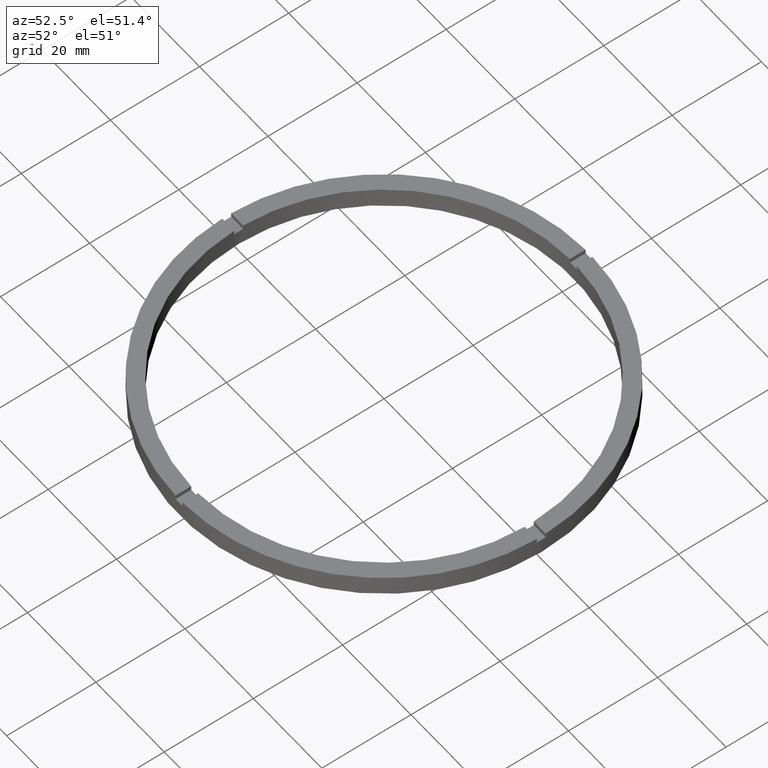
[diagram: clean part render]
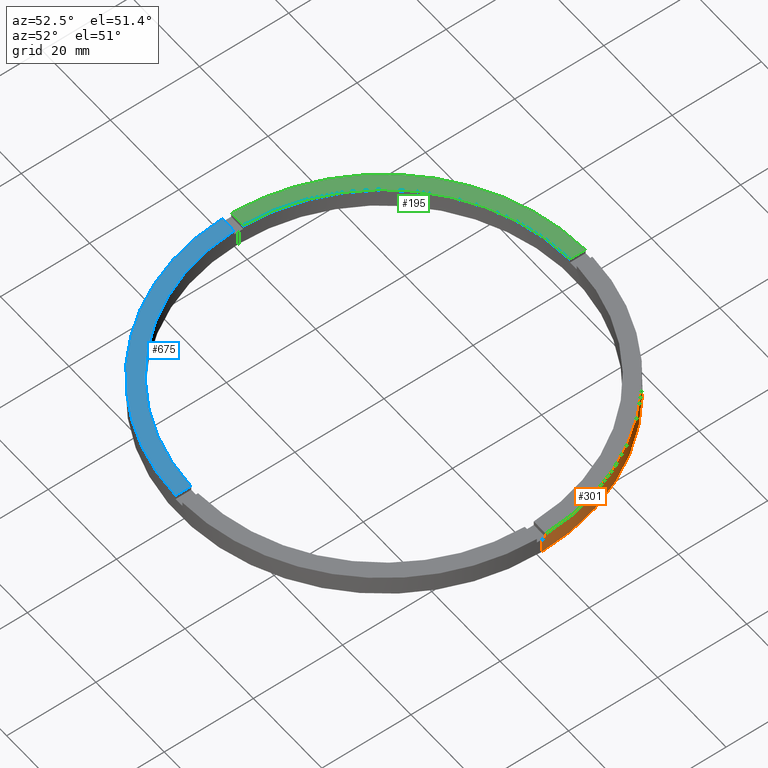
[diagram: same view with three faces highlighted in distinct colors, each labeled with its STEP entity id]
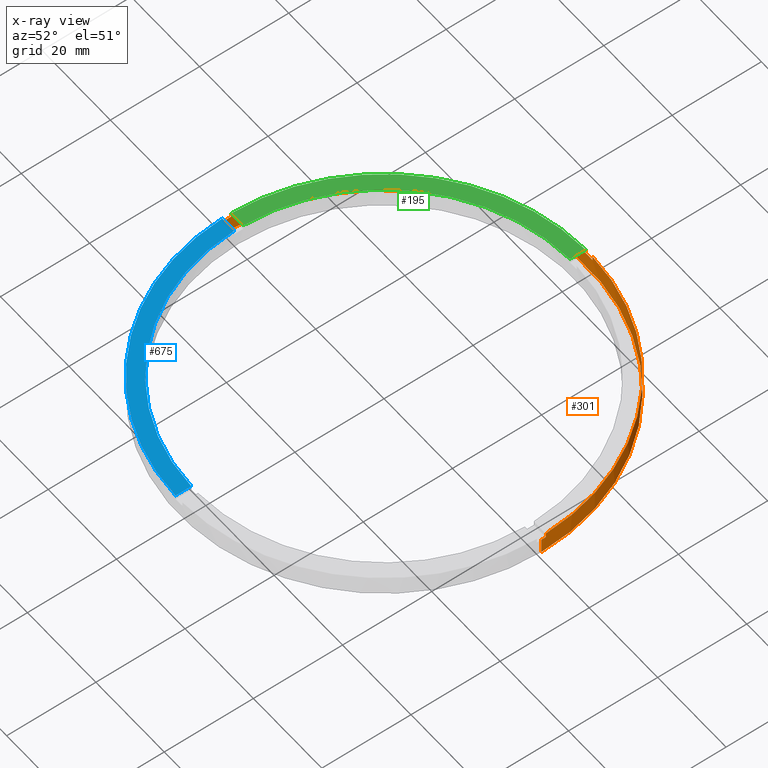
[diagram: x-ray of the same camera — body ghosted, the three highlighted faces saturated]
A machine part, auxiliary view with three faces highlighted in distinct colors.
The next image is the same camera in x-ray (body ghosted, the three faces saturated) — at least one of them is partly hidden behind the body in this view.
Their STEP definitions:

[orange] entity #301 — the highlighted cylindrical surface (partial cylindrical patch) has radius 46 mm, axis along (-0, -0, -1).
#3 = LINE ( 'NONE', #771, #769 ) ;
#13 = CARTESIAN_POINT ( 'NONE',  ( 0.000000000000000000, 0.000000000000000000, 0.000000000000000000 ) ) ;
#15 = EDGE_LOOP ( 'NONE', ( #481, #432, #734, #174, #170, #514, #721, #530, #206, #214, #464, #547 ) ) ;
#18 = CARTESIAN_POINT ( 'NONE',  ( 0.000000000000000000, 0.000000000000000000, 4.500000000000000000 ) ) ;
#22 = EDGE_CURVE ( 'NONE', #302, #444, #480, .T. ) ;
#42 = EDGE_CURVE ( 'NONE', #695, #687, #691, .T. ) ;
#57 = CARTESIAN_POINT ( 'NONE',  ( 45.98912915026767934, 0.9999999999998441247, 3.499999999999999556 ) ) ;
#69 = CARTESIAN_POINT ( 'NONE',  ( 46.00000000000000000, 5.633375276077824704E-15, 0.000000000000000000 ) ) ;
#72 = EDGE_CURVE ( 'NONE', #764, #687, #484, .T. ) ;
#75 = DIRECTION ( 'NONE',  ( 0.000000000000000000, 0.000000000000000000, 1.000000000000000000 ) ) ;
#81 = CARTESIAN_POINT ( 'NONE',  ( 46.00000000000000000, 5.633375276077824704E-15, 3.499999999999999556 ) ) ;
#84 = EDGE_CURVE ( 'NONE', #213, #563, #741, .T. ) ;
#97 = EDGE_CURVE ( 'NONE', #279, #544, #700, .T. ) ;
#98 = CARTESIAN_POINT ( 'NONE',  ( -46.00000000000000000, 0.000000000000000000, 0.000000000000000000 ) ) ;
#102 = EDGE_CURVE ( 'NONE', #302, #747, #701, .T. ) ;
#104 = CARTESIAN_POINT ( 'NONE',  ( -45.98912915026767223, 0.9999999999999699130, 4.500000000000000000 ) ) ;
#109 = AXIS2_PLACEMENT_3D ( 'NONE', #243, #303, #573 ) ;
#110 = LINE ( 'NONE', #154, #616 ) ;
#113 = CYLINDRICAL_SURFACE ( 'NONE', #156, 46.00000000000000000 ) ;
#127 = EDGE_CURVE ( 'NONE', #213, #196, #748, .T. ) ;
#128 = DIRECTION ( 'NONE',  ( -0.000000000000000000, -0.000000000000000000, -1.000000000000000000 ) ) ;
#142 = CARTESIAN_POINT ( 'NONE',  ( -46.00000000000000000, 0.000000000000000000, 3.499999999999999556 ) ) ;
#149 = EDGE_CURVE ( 'NONE', #444, #544, #237, .T. ) ;
#154 = CARTESIAN_POINT ( 'NONE',  ( 0.9999999999999737987, 45.98912915026767223, 4.500000000000000000 ) ) ;
#156 = AXIS2_PLACEMENT_3D ( 'NONE', #606, #485, #350 ) ;
#157 = AXIS2_PLACEMENT_3D ( 'NONE', #13, #311, #361 ) ;
#170 = ORIENTED_EDGE ( 'NONE', *, *, #22, .F. ) ;
#172 = VERTEX_POINT ( 'NONE', #81 ) ;
#174 = ORIENTED_EDGE ( 'NONE', *, *, #149, .F. ) ;
#188 = CARTESIAN_POINT ( 'NONE',  ( -1.000000000000026201, 45.98912915026767223, 4.500000000000000000 ) ) ;
#196 = VERTEX_POINT ( 'NONE', #579 ) ;
#205 = CARTESIAN_POINT ( 'NONE',  ( 45.98912915026767934, 0.9999999999998441247, 4.500000000000000000 ) ) ;
#206 = ORIENTED_EDGE ( 'NONE', *, *, #42, .F. ) ;
#213 = VERTEX_POINT ( 'NONE', #205 ) ;
#214 = ORIENTED_EDGE ( 'NONE', *, *, #230, .T. ) ;
#224 = AXIS2_PLACEMENT_3D ( 'NONE', #18, #75, #325 ) ;
#230 = EDGE_CURVE ( 'NONE', #695, #196, #110, .T. ) ;
#234 = VECTOR ( 'NONE', #128, 1000.000000000000000 ) ;
#237 = LINE ( 'NONE', #654, #234 ) ;
#243 = CARTESIAN_POINT ( 'NONE',  ( 0.000000000000000000, 0.000000000000000000, 3.499999999999999556 ) ) ;
#251 = DIRECTION ( 'NONE',  ( 1.000000000000000000, 0.000000000000000000, 0.000000000000000000 ) ) ;
#255 = CIRCLE ( 'NONE', #516, 46.00000000000000000 ) ;
#279 = VERTEX_POINT ( 'NONE', #69 ) ;
#290 = CARTESIAN_POINT ( 'NONE',  ( 0.9999999999999737987, 45.98912915026767223, 3.499999999999999556 ) ) ;
#301 = ADVANCED_FACE ( 'NONE', ( #347 ), #113, .T. ) ;
#302 = VERTEX_POINT ( 'NONE', #601 ) ;
#303 = DIRECTION ( 'NONE',  ( 0.000000000000000000, -0.000000000000000000, 1.000000000000000000 ) ) ;
#311 = DIRECTION ( 'NONE',  ( 0.000000000000000000, 0.000000000000000000, 1.000000000000000000 ) ) ;
#325 = DIRECTION ( 'NONE',  ( 1.000000000000000000, 0.000000000000000000, 0.000000000000000000 ) ) ;
#342 = DIRECTION ( 'NONE',  ( 0.000000000000000000, 0.000000000000000000, 1.000000000000000000 ) ) ;
#345 = DIRECTION ( 'NONE',  ( -0.000000000000000000, -0.000000000000000000, -1.000000000000000000 ) ) ;
#347 = FACE_OUTER_BOUND ( 'NONE', #15, .T. ) ;
#350 = DIRECTION ( 'NONE',  ( -1.000000000000000000, 0.000000000000000000, 0.000000000000000000 ) ) ;
#361 = DIRECTION ( 'NONE',  ( 1.000000000000000000, 0.000000000000000000, 0.000000000000000000 ) ) ;
#375 = DIRECTION ( 'NONE',  ( 1.000000000000000000, 0.000000000000000000, 0.000000000000000000 ) ) ;
#395 = CARTESIAN_POINT ( 'NONE',  ( 0.000000000000000000, 0.000000000000000000, 3.499999999999999556 ) ) ;
#411 = CARTESIAN_POINT ( 'NONE',  ( 0.000000000000000000, 0.000000000000000000, 4.500000000000000000 ) ) ;
#432 = ORIENTED_EDGE ( 'NONE', *, *, #595, .T. ) ;
#438 = VECTOR ( 'NONE', #493, 1000.000000000000000 ) ;
#444 = VERTEX_POINT ( 'NONE', #142 ) ;
#464 = ORIENTED_EDGE ( 'NONE', *, *, #127, .F. ) ;
#480 = CIRCLE ( 'NONE', #637, 46.00000000000000000 ) ;
#481 = ORIENTED_EDGE ( 'NONE', *, *, #604, .F. ) ;
#484 = LINE ( 'NONE', #188, #713 ) ;
#485 = DIRECTION ( 'NONE',  ( -0.000000000000000000, -0.000000000000000000, -1.000000000000000000 ) ) ;
#487 = DIRECTION ( 'NONE',  ( 0.000000000000000000, 0.000000000000000000, 1.000000000000000000 ) ) ;
#492 = VECTOR ( 'NONE', #569, 1000.000000000000000 ) ;
#493 = DIRECTION ( 'NONE',  ( -0.000000000000000000, -0.000000000000000000, -1.000000000000000000 ) ) ;
#503 = CARTESIAN_POINT ( 'NONE',  ( -45.98912915026767223, 0.9999999999999699130, 4.500000000000000000 ) ) ;
#514 = ORIENTED_EDGE ( 'NONE', *, *, #102, .T. ) ;
#516 = AXIS2_PLACEMENT_3D ( 'NONE', #411, #487, #251 ) ;
#530 = ORIENTED_EDGE ( 'NONE', *, *, #72, .T. ) ;
#544 = VERTEX_POINT ( 'NONE', #98 ) ;
#547 = ORIENTED_EDGE ( 'NONE', *, *, #84, .T. ) ;
#563 = VERTEX_POINT ( 'NONE', #57 ) ;
#569 = DIRECTION ( 'NONE',  ( 0.000000000000000000, 0.000000000000000000, 1.000000000000000000 ) ) ;
#573 = DIRECTION ( 'NONE',  ( 1.000000000000000000, 0.000000000000000000, 0.000000000000000000 ) ) ;
#579 = CARTESIAN_POINT ( 'NONE',  ( 0.9999999999999737987, 45.98912915026767223, 4.500000000000000000 ) ) ;
#588 = CARTESIAN_POINT ( 'NONE',  ( -1.000000000000026201, 45.98912915026767223, 3.499999999999999556 ) ) ;
#594 = CARTESIAN_POINT ( 'NONE',  ( -1.000000000000026201, 45.98912915026767223, 4.500000000000000000 ) ) ;
#595 = EDGE_CURVE ( 'NONE', #172, #279, #3, .T. ) ;
#598 = CARTESIAN_POINT ( 'NONE',  ( 45.98912915026767934, 0.9999999999998441247, 4.500000000000000000 ) ) ;
#601 = CARTESIAN_POINT ( 'NONE',  ( -45.98912915026767223, 0.9999999999999699130, 3.499999999999999556 ) ) ;
#604 = EDGE_CURVE ( 'NONE', #172, #563, #783, .T. ) ;
#606 = CARTESIAN_POINT ( 'NONE',  ( 0.000000000000000000, 0.000000000000000000, 4.500000000000000000 ) ) ;
#608 = AXIS2_PLACEMENT_3D ( 'NONE', #395, #653, #699 ) ;
#616 = VECTOR ( 'NONE', #686, 1000.000000000000000 ) ;
#622 = CARTESIAN_POINT ( 'NONE',  ( 0.000000000000000000, 0.000000000000000000, 3.499999999999999556 ) ) ;
#631 = EDGE_CURVE ( 'NONE', #764, #747, #255, .T. ) ;
#637 = AXIS2_PLACEMENT_3D ( 'NONE', #622, #342, #375 ) ;
#653 = DIRECTION ( 'NONE',  ( 0.000000000000000000, 0.000000000000000000, 1.000000000000000000 ) ) ;
#654 = CARTESIAN_POINT ( 'NONE',  ( -46.00000000000000000, 0.000000000000000000, 4.500000000000000000 ) ) ;
#671 = DIRECTION ( 'NONE',  ( -0.000000000000000000, -0.000000000000000000, -1.000000000000000000 ) ) ;
#686 = DIRECTION ( 'NONE',  ( 0.000000000000000000, 0.000000000000000000, 1.000000000000000000 ) ) ;
#687 = VERTEX_POINT ( 'NONE', #588 ) ;
#691 = CIRCLE ( 'NONE', #109, 46.00000000000000000 ) ;
#695 = VERTEX_POINT ( 'NONE', #290 ) ;
#699 = DIRECTION ( 'NONE',  ( 1.000000000000000000, 0.000000000000000000, 0.000000000000000000 ) ) ;
#700 = CIRCLE ( 'NONE', #157, 46.00000000000000000 ) ;
#701 = LINE ( 'NONE', #503, #492 ) ;
#713 = VECTOR ( 'NONE', #671, 1000.000000000000000 ) ;
#721 = ORIENTED_EDGE ( 'NONE', *, *, #631, .F. ) ;
#734 = ORIENTED_EDGE ( 'NONE', *, *, #97, .T. ) ;
#741 = LINE ( 'NONE', #598, #438 ) ;
#747 = VERTEX_POINT ( 'NONE', #104 ) ;
#748 = CIRCLE ( 'NONE', #224, 46.00000000000000000 ) ;
#764 = VERTEX_POINT ( 'NONE', #594 ) ;
#769 = VECTOR ( 'NONE', #345, 1000.000000000000000 ) ;
#771 = CARTESIAN_POINT ( 'NONE',  ( 46.00000000000000000, 5.633375276077824704E-15, 4.500000000000000000 ) ) ;
#783 = CIRCLE ( 'NONE', #608, 46.00000000000000000 ) ;

[blue] entity #675 — the highlighted planar face has unit normal (0, 0, 1).
#1 = CIRCLE ( 'NONE', #166, 46.00000000000000000 ) ;
#14 = AXIS2_PLACEMENT_3D ( 'NONE', #44, #211, #638 ) ;
#26 = VERTEX_POINT ( 'NONE', #512 ) ;
#34 = CARTESIAN_POINT ( 'NONE',  ( -1.000000000000158540, -42.48823366533375179, 4.500000000000000000 ) ) ;
#44 = CARTESIAN_POINT ( 'NONE',  ( 0.000000000000000000, 0.000000000000000000, 4.500000000000000000 ) ) ;
#55 = EDGE_CURVE ( 'NONE', #556, #199, #435, .T. ) ;
#79 = AXIS2_PLACEMENT_3D ( 'NONE', #85, #136, #742 ) ;
#85 = CARTESIAN_POINT ( 'NONE',  ( 0.000000000000000000, 0.000000000000000000, 4.500000000000000000 ) ) ;
#103 = CARTESIAN_POINT ( 'NONE',  ( -1.000000000000157874, -45.98912915026767223, 4.500000000000000000 ) ) ;
#136 = DIRECTION ( 'NONE',  ( 0.000000000000000000, 0.000000000000000000, 1.000000000000000000 ) ) ;
#164 = ORIENTED_EDGE ( 'NONE', *, *, #587, .F. ) ;
#166 = AXIS2_PLACEMENT_3D ( 'NONE', #312, #670, #533 ) ;
#199 = VERTEX_POINT ( 'NONE', #34 ) ;
#211 = DIRECTION ( 'NONE',  ( 0.000000000000000000, 0.000000000000000000, 1.000000000000000000 ) ) ;
#221 = PLANE ( 'NONE',  #14 ) ;
#245 = CARTESIAN_POINT ( 'NONE',  ( -1.000000000000159206, -36.00000000000017764, 4.500000000000000000 ) ) ;
#263 = ORIENTED_EDGE ( 'NONE', *, *, #511, .F. ) ;
#265 = ORIENTED_EDGE ( 'NONE', *, *, #55, .F. ) ;
#266 = VECTOR ( 'NONE', #304, 1000.000000000000000 ) ;
#272 = FACE_OUTER_BOUND ( 'NONE', #539, .T. ) ;
#304 = DIRECTION ( 'NONE',  ( 1.000000000000000000, 1.951563910473907735E-16, -0.000000000000000000 ) ) ;
#312 = CARTESIAN_POINT ( 'NONE',  ( 0.000000000000000000, 0.000000000000000000, 4.500000000000000000 ) ) ;
#336 = DIRECTION ( 'NONE',  ( 1.301042606982605074E-16, -1.000000000000000000, 0.000000000000000000 ) ) ;
#380 = LINE ( 'NONE', #245, #643 ) ;
#387 = CARTESIAN_POINT ( 'NONE',  ( -42.48823366533375179, -1.000000000000029532, 4.500000000000000000 ) ) ;
#423 = VERTEX_POINT ( 'NONE', #103 ) ;
#435 = CIRCLE ( 'NONE', #79, 42.50000000000000711 ) ;
#463 = ORIENTED_EDGE ( 'NONE', *, *, #664, .T. ) ;
#466 = CARTESIAN_POINT ( 'NONE',  ( -36.00000000000018474, -1.000000000000028200, 4.500000000000000000 ) ) ;
#511 = EDGE_CURVE ( 'NONE', #199, #423, #380, .T. ) ;
#512 = CARTESIAN_POINT ( 'NONE',  ( -45.98912915026767223, -1.000000000000030198, 4.500000000000000000 ) ) ;
#525 = LINE ( 'NONE', #466, #266 ) ;
#533 = DIRECTION ( 'NONE',  ( 1.000000000000000000, 0.000000000000000000, 0.000000000000000000 ) ) ;
#539 = EDGE_LOOP ( 'NONE', ( #263, #265, #164, #463 ) ) ;
#556 = VERTEX_POINT ( 'NONE', #387 ) ;
#587 = EDGE_CURVE ( 'NONE', #26, #556, #525, .T. ) ;
#638 = DIRECTION ( 'NONE',  ( 1.000000000000000000, 0.000000000000000000, -0.000000000000000000 ) ) ;
#643 = VECTOR ( 'NONE', #336, 1000.000000000000000 ) ;
#664 = EDGE_CURVE ( 'NONE', #26, #423, #1, .T. ) ;
#670 = DIRECTION ( 'NONE',  ( 0.000000000000000000, 0.000000000000000000, 1.000000000000000000 ) ) ;
#675 = ADVANCED_FACE ( 'NONE', ( #272 ), #221, .T. ) ;
#742 = DIRECTION ( 'NONE',  ( 1.000000000000000000, 0.000000000000000000, 0.000000000000000000 ) ) ;

[green] entity #195 — the highlighted planar face has unit normal (0, 0, 1).
#11 = VERTEX_POINT ( 'NONE', #335 ) ;
#104 = CARTESIAN_POINT ( 'NONE',  ( -45.98912915026767223, 0.9999999999999699130, 4.500000000000000000 ) ) ;
#105 = AXIS2_PLACEMENT_3D ( 'NONE', #296, #392, #453 ) ;
#108 = CARTESIAN_POINT ( 'NONE',  ( -42.48823366533375889, 0.9999999999999705791, 4.500000000000000000 ) ) ;
#161 = CARTESIAN_POINT ( 'NONE',  ( 0.000000000000000000, 0.000000000000000000, 4.500000000000000000 ) ) ;
#175 = ORIENTED_EDGE ( 'NONE', *, *, #673, .F. ) ;
#195 = ADVANCED_FACE ( 'NONE', ( #489 ), #307, .T. ) ;
#204 = ORIENTED_EDGE ( 'NONE', *, *, #568, .F. ) ;
#212 = ORIENTED_EDGE ( 'NONE', *, *, #631, .T. ) ;
#231 = ORIENTED_EDGE ( 'NONE', *, *, #733, .F. ) ;
#251 = DIRECTION ( 'NONE',  ( 1.000000000000000000, 0.000000000000000000, 0.000000000000000000 ) ) ;
#255 = CIRCLE ( 'NONE', #516, 46.00000000000000000 ) ;
#262 = LINE ( 'NONE', #309, #268 ) ;
#268 = VECTOR ( 'NONE', #447, 1000.000000000000000 ) ;
#296 = CARTESIAN_POINT ( 'NONE',  ( 0.000000000000000000, 0.000000000000000000, 4.500000000000000000 ) ) ;
#307 = PLANE ( 'NONE',  #354 ) ;
#309 = CARTESIAN_POINT ( 'NONE',  ( -36.00000000000018474, 0.9999999999999718003, 4.500000000000000000 ) ) ;
#315 = DIRECTION ( 'NONE',  ( 0.000000000000000000, 0.000000000000000000, 1.000000000000000000 ) ) ;
#335 = CARTESIAN_POINT ( 'NONE',  ( -1.000000000000026201, 42.48823366533375179, 4.500000000000000000 ) ) ;
#354 = AXIS2_PLACEMENT_3D ( 'NONE', #161, #315, #430 ) ;
#392 = DIRECTION ( 'NONE',  ( 0.000000000000000000, 0.000000000000000000, 1.000000000000000000 ) ) ;
#411 = CARTESIAN_POINT ( 'NONE',  ( 0.000000000000000000, 0.000000000000000000, 4.500000000000000000 ) ) ;
#430 = DIRECTION ( 'NONE',  ( 1.000000000000000000, 0.000000000000000000, -0.000000000000000000 ) ) ;
#447 = DIRECTION ( 'NONE',  ( -1.000000000000000000, -1.951563910473907735E-16, 0.000000000000000000 ) ) ;
#453 = DIRECTION ( 'NONE',  ( 1.000000000000000000, 0.000000000000000000, 0.000000000000000000 ) ) ;
#482 = VERTEX_POINT ( 'NONE', #108 ) ;
#487 = DIRECTION ( 'NONE',  ( 0.000000000000000000, 0.000000000000000000, 1.000000000000000000 ) ) ;
#489 = FACE_OUTER_BOUND ( 'NONE', #665, .T. ) ;
#513 = CIRCLE ( 'NONE', #105, 42.50000000000000711 ) ;
#516 = AXIS2_PLACEMENT_3D ( 'NONE', #411, #487, #251 ) ;
#568 = EDGE_CURVE ( 'NONE', #482, #747, #262, .T. ) ;
#594 = CARTESIAN_POINT ( 'NONE',  ( -1.000000000000026201, 45.98912915026767223, 4.500000000000000000 ) ) ;
#628 = DIRECTION ( 'NONE',  ( -0.000000000000000000, -1.000000000000000000, -0.000000000000000000 ) ) ;
#631 = EDGE_CURVE ( 'NONE', #764, #747, #255, .T. ) ;
#665 = EDGE_LOOP ( 'NONE', ( #231, #212, #204, #175 ) ) ;
#673 = EDGE_CURVE ( 'NONE', #11, #482, #513, .T. ) ;
#674 = CARTESIAN_POINT ( 'NONE',  ( -1.000000000000026201, 36.00000000000000000, 4.500000000000000000 ) ) ;
#733 = EDGE_CURVE ( 'NONE', #764, #11, #759, .T. ) ;
#747 = VERTEX_POINT ( 'NONE', #104 ) ;
#759 = LINE ( 'NONE', #674, #777 ) ;
#764 = VERTEX_POINT ( 'NONE', #594 ) ;
#777 = VECTOR ( 'NONE', #628, 1000.000000000000000 ) ;